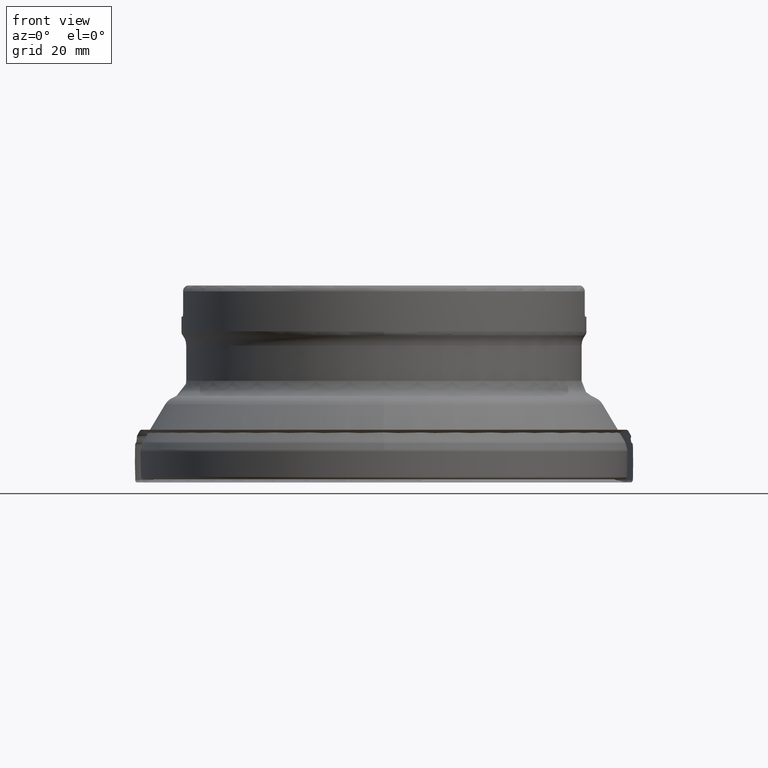
[diagram: clean part render]
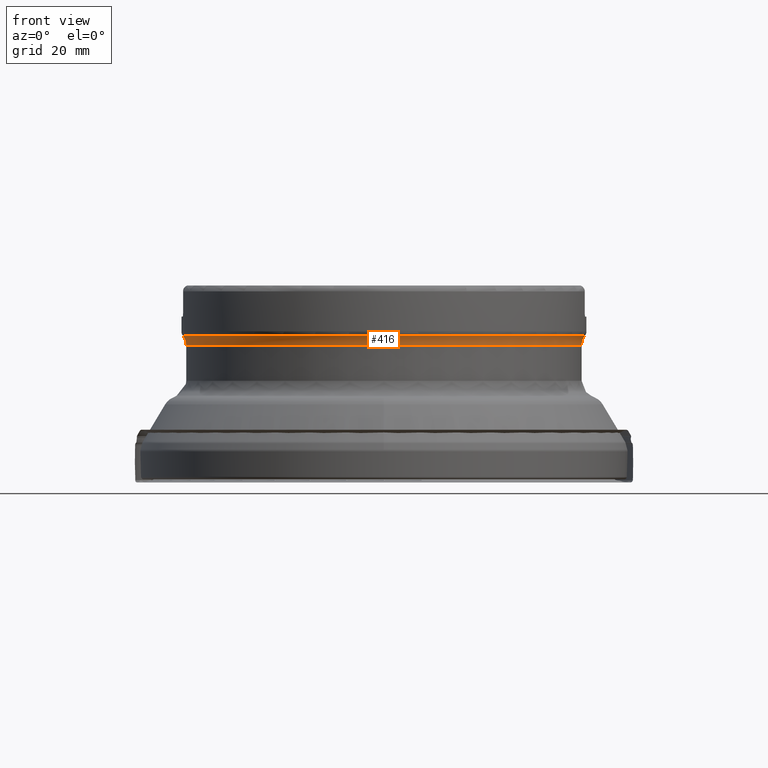
[diagram: same view with one face highlighted and labeled with its STEP entity id]
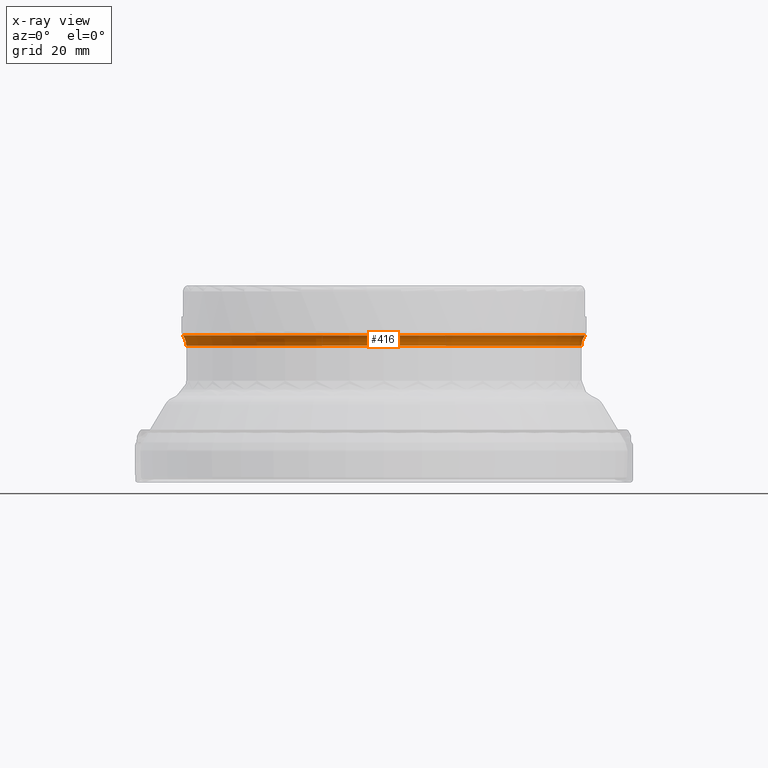
[diagram: x-ray of the same camera — body ghosted, the highlighted face saturated]
A machine part, front view. The second image highlights one B-rep face of the part: STEP entity #416.
The next image is the same camera in x-ray: the body ghosted, the highlighted face saturated — about 0% of this face is hidden behind the body in this view.
In plain terms, the highlighted toroidal blend (fillet) surface has major radius 65.5 mm and minor (blend) radius 5 mm.
Its self-contained STEP definition (entity closure, byte-faithful):
#313=FACE_BOUND('',#561,.T.);
#314=FACE_BOUND('',#562,.T.);
#416=ADVANCED_FACE('',(#313,#314),#454,.F.);
#454=TOROIDAL_SURFACE('',#1298,65.5,5.);
#561=EDGE_LOOP('',(#801));
#562=EDGE_LOOP('',(#802));
#801=ORIENTED_EDGE('',*,*,#1049,.T.);
#802=ORIENTED_EDGE('',*,*,#981,.F.);
#879=VERTEX_POINT('',#2045);
#929=VERTEX_POINT('',#2317);
#981=EDGE_CURVE('',#879,#879,#1081,.T.);
#1049=EDGE_CURVE('',#929,#929,#1117,.T.);
#1081=CIRCLE('',#1215,60.5);
#1117=CIRCLE('',#1297,61.5714285714287);
#1215=AXIS2_PLACEMENT_3D('',#2044,#1360,#1361);
#1297=AXIS2_PLACEMENT_3D('',#2316,#1540,#1541);
#1298=AXIS2_PLACEMENT_3D('',#2318,#1542,#1543);
#1360=DIRECTION('',(0.,-1.17145536458252E-15,-1.));
#1361=DIRECTION('',(0.,1.,-1.14692461221607E-15));
#1540=DIRECTION('',(0.,-1.17145536458252E-15,-1.));
#1541=DIRECTION('',(0.,1.,-1.12696652731672E-15));
#1542=DIRECTION('',(0.,-1.17145536458252E-15,-1.));
#1543=DIRECTION('',(0.,1.,-1.18108832406932E-15));
#2044=CARTESIAN_POINT('',(0.,4.91471589271216E-14,41.9539321881345));
#2045=CARTESIAN_POINT('',(0.,60.5000000000001,41.9539321881345));
#2316=CARTESIAN_POINT('',(0.,5.27704093025787E-14,45.0468800587931));
#2317=CARTESIAN_POINT('',(0.,61.5714285714288,45.046880058793));
#2318=CARTESIAN_POINT('',(0.,4.91471589271216E-14,41.9539321881345));